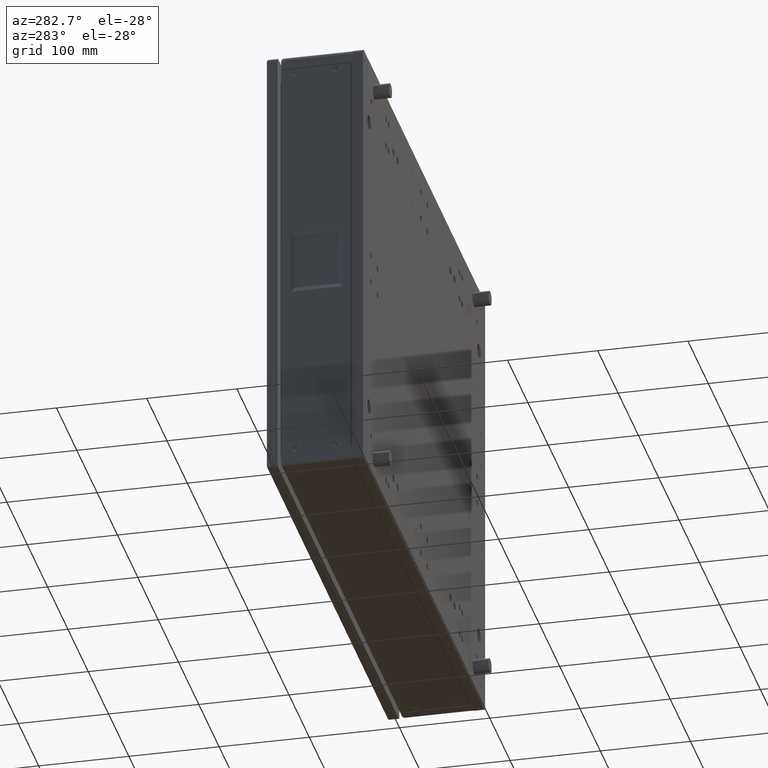
[diagram: clean part render]
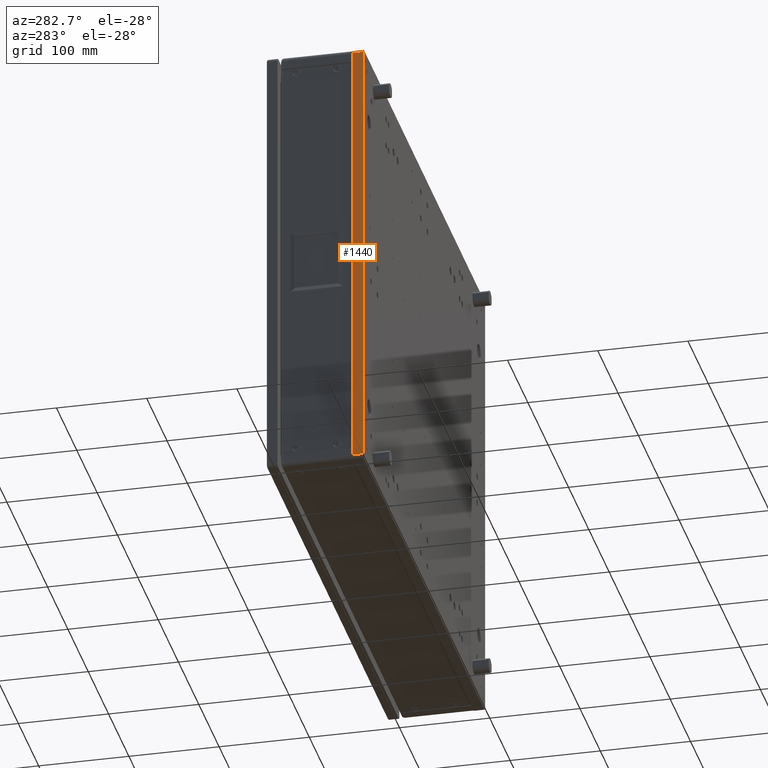
[diagram: same view with one face highlighted and labeled with its STEP entity id]
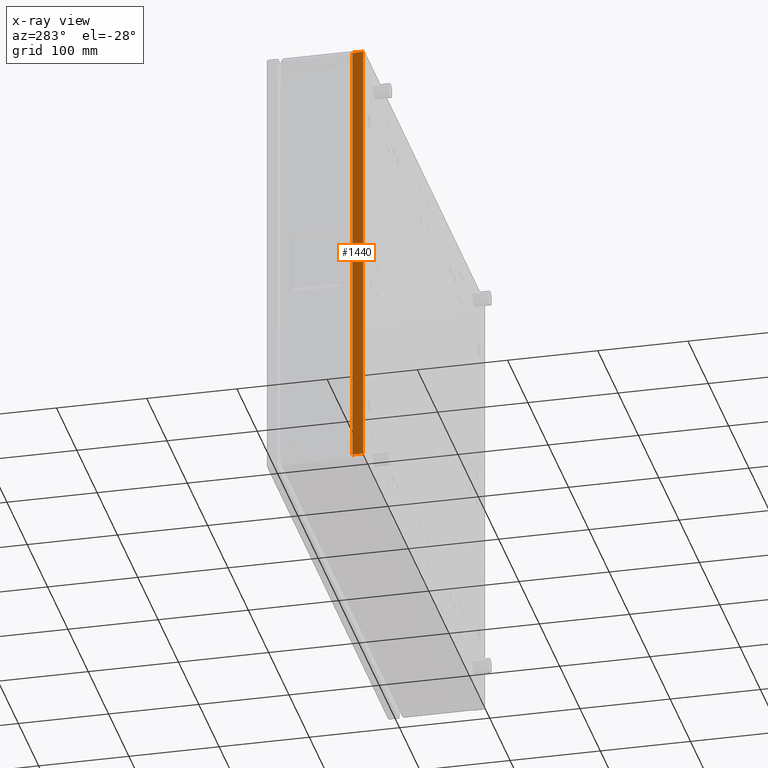
[diagram: x-ray of the same camera — body ghosted, the highlighted face saturated]
A machine part, auxiliary view. The second image highlights one B-rep face of the part: STEP entity #1440.
The next image is the same camera in x-ray: the body ghosted, the highlighted face saturated — about 0% of this face is hidden behind the body in this view.
In plain terms, the highlighted planar face has unit normal (-1, 0, 0).
Its self-contained STEP definition (entity closure, byte-faithful):
#417 = VECTOR ( 'NONE', #30283, 1000.000000000000000 ) ;
#1440 = ADVANCED_FACE ( 'NONE', ( #9289 ), #24526, .T. ) ;
#2460 = EDGE_CURVE ( 'NONE', #20668, #7196, #26910, .T. ) ;
#3733 = CARTESIAN_POINT ( 'NONE',  ( -295.5487244020110893, 6.137181100506329479, 295.0000000000000568 ) ) ;
#5060 = CARTESIAN_POINT ( 'NONE',  ( -295.5487244020110893, 6.137181100506329479, 299.0000000000000568 ) ) ;
#5371 = CARTESIAN_POINT ( 'NONE',  ( -295.5487244020110325, 18.13718110050632859, 791.0000000000000000 ) ) ;
#7196 = VERTEX_POINT ( 'NONE', #29165 ) ;
#8401 = DIRECTION ( 'NONE',  ( -1.075528555105620275E-16, -0.000000000000000000, -1.000000000000000000 ) ) ;
#9289 = FACE_OUTER_BOUND ( 'NONE', #29182, .T. ) ;
#11469 = DIRECTION ( 'NONE',  ( -0.000000000000000000, -1.000000000000000000, 0.000000000000000000 ) ) ;
#11529 = VECTOR ( 'NONE', #11469, 1000.000000000000000 ) ;
#12020 = VERTEX_POINT ( 'NONE', #12294 ) ;
#12090 = ORIENTED_EDGE ( 'NONE', *, *, #35186, .T. ) ;
#12294 = CARTESIAN_POINT ( 'NONE',  ( -295.5487244020110893, 18.13718110050632859, 299.0000000000000568 ) ) ;
#15411 = DIRECTION ( 'NONE',  ( -1.000000000000000000, 0.000000000000000000, 1.075528555105620275E-16 ) ) ;
#15612 = DIRECTION ( 'NONE',  ( 1.075528555105620275E-16, 0.000000000000000000, 1.000000000000000000 ) ) ;
#16503 = VERTEX_POINT ( 'NONE', #20898 ) ;
#16936 = CARTESIAN_POINT ( 'NONE',  ( -295.5487244020110893, 18.13718110050632859, 295.0000000000000568 ) ) ;
#18412 = LINE ( 'NONE', #3733, #417 ) ;
#20668 = VERTEX_POINT ( 'NONE', #5371 ) ;
#20703 = LINE ( 'NONE', #5060, #29404 ) ;
#20898 = CARTESIAN_POINT ( 'NONE',  ( -295.5487244020110893, 6.137181100506329479, 299.0000000000000568 ) ) ;
#23366 = CARTESIAN_POINT ( 'NONE',  ( -295.5487244020110325, 6.137181100506329479, 791.0000000000000000 ) ) ;
#24526 = PLANE ( 'NONE',  #36123 ) ;
#25109 = EDGE_CURVE ( 'NONE', #12020, #16503, #20703, .T. ) ;
#25492 = ORIENTED_EDGE ( 'NONE', *, *, #27617, .T. ) ;
#25854 = LINE ( 'NONE', #16936, #28192 ) ;
#26463 = DIRECTION ( 'NONE',  ( -0.000000000000000000, -1.000000000000000000, 0.000000000000000000 ) ) ;
#26910 = LINE ( 'NONE', #23366, #11529 ) ;
#27617 = EDGE_CURVE ( 'NONE', #20668, #12020, #25854, .T. ) ;
#28192 = VECTOR ( 'NONE', #8401, 1000.000000000000000 ) ;
#29165 = CARTESIAN_POINT ( 'NONE',  ( -295.5487244020110893, 6.137181100506329479, 791.0000000000000000 ) ) ;
#29182 = EDGE_LOOP ( 'NONE', ( #12090, #34567, #25492, #32194 ) ) ;
#29404 = VECTOR ( 'NONE', #26463, 1000.000000000000000 ) ;
#30283 = DIRECTION ( 'NONE',  ( 0.000000000000000000, -0.000000000000000000, 1.000000000000000000 ) ) ;
#32194 = ORIENTED_EDGE ( 'NONE', *, *, #25109, .T. ) ;
#33425 = CARTESIAN_POINT ( 'NONE',  ( -295.5487244020110893, 6.137181100506329479, 295.0000000000000568 ) ) ;
#34567 = ORIENTED_EDGE ( 'NONE', *, *, #2460, .F. ) ;
#35186 = EDGE_CURVE ( 'NONE', #16503, #7196, #18412, .T. ) ;
#36123 = AXIS2_PLACEMENT_3D ( 'NONE', #33425, #15411, #15612 ) ;